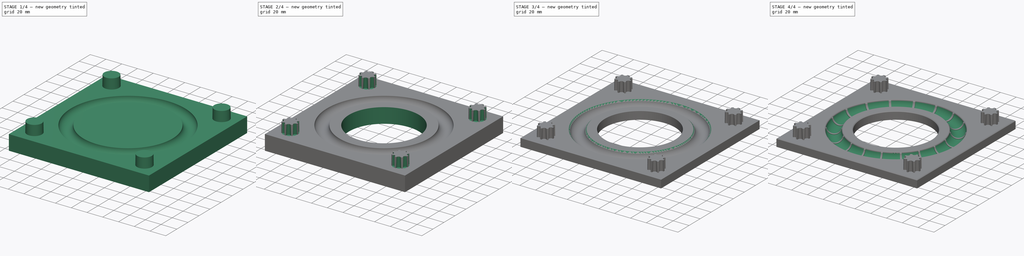
[diagram: build sequence overview — one tinted view per stage of 4, left to right]
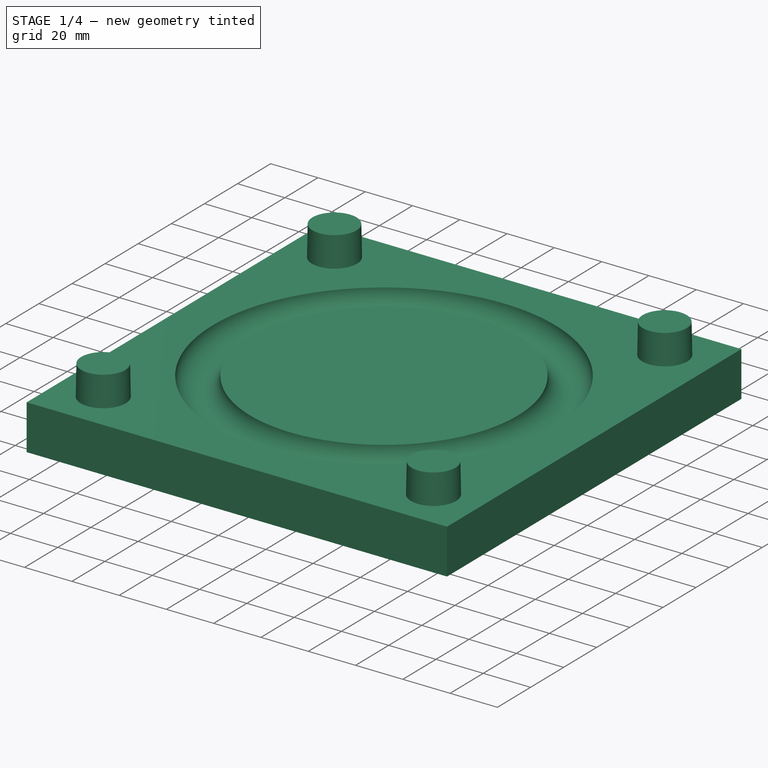
[diagram: stage 1 of 4 — iso view after this stage's code; geometry added in this stage tinted green]
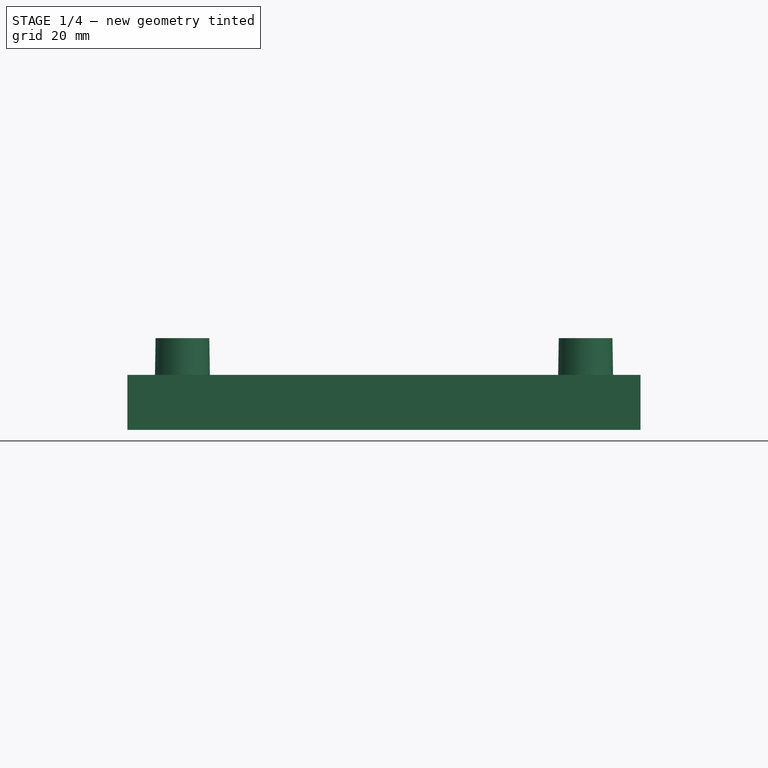
[diagram: stage 1 of 4 — front view after this stage's code; geometry added in this stage tinted green]
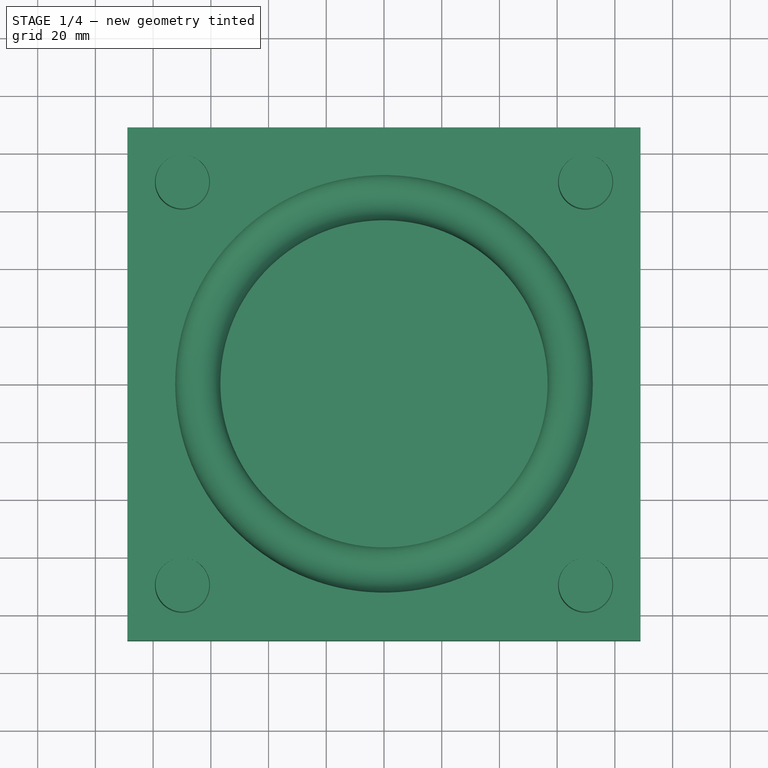
[diagram: stage 1 of 4 — top view after this stage's code; geometry added in this stage tinted green]
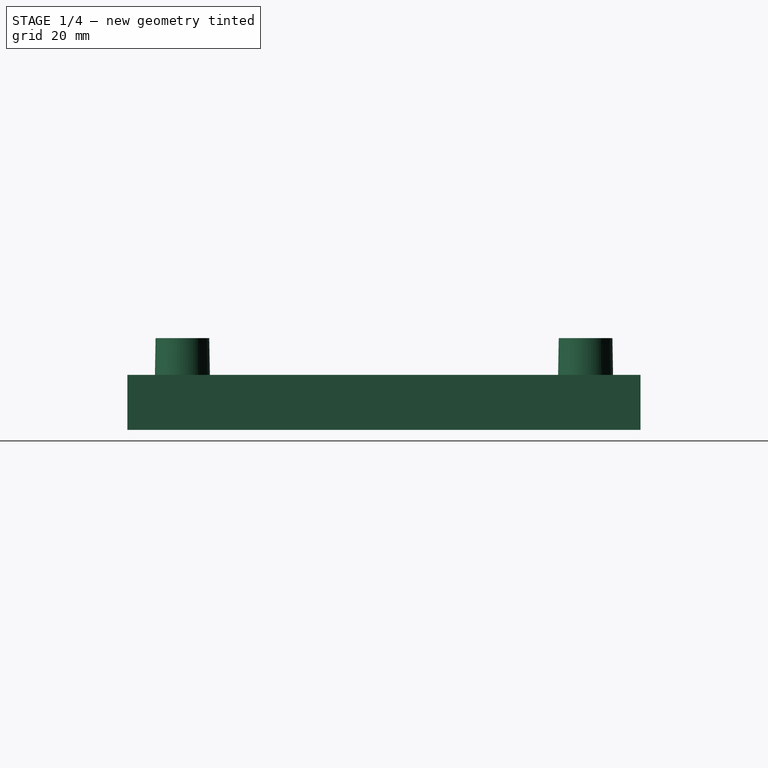
[diagram: stage 1 of 4 — right view after this stage's code; geometry added in this stage tinted green]
FCSTD DOCUMENT  (FreeCAD 0.21R33771 (Git))
Label: bottom_plate
License: All rights reserved
LicenseURL: http://en.wikipedia.org/wiki/All_rights_reserved
objects: Sketcher::SketchObject×8, PartDesign::Groove×3, PartDesign::Pocket×3, PartDesign::Pad×2, PartDesign::PolarPattern×2, PartDesign::Chamfer×1, PartDesign::Body×1
note: 29 computed .brp shape members not serialized (recipe doc carries the construction recipe); baked Part::Feature solids carry a one-line shape summary decoded from their .brp

FEATURE [Sketcher::SketchObject] Sketch
  FullyConstrained = true
  MapMode = 5
  Support = -> [XY_Plane]
  sketch-geometry (4):
    g0: LineSegment StartX=-88.9 StartY=-88.9 StartZ=0 EndX=88.9 EndY=-88.9 EndZ=0
    g1: LineSegment StartX=88.9 StartY=-88.9 StartZ=0 EndX=88.9 EndY=88.9 EndZ=0
    g2: LineSegment StartX=88.9 StartY=88.9 StartZ=0 EndX=-88.9 EndY=88.9 EndZ=0
    g3: LineSegment StartX=-88.9 StartY=88.9 StartZ=0 EndX=-88.9 EndY=-88.9 EndZ=0
  constraints (11):
    c: Coincident(g0,g1)
    c: Coincident(g1,g2)
    c: Coincident(g2,g3)
    c: Coincident(g3,g0)
    c: Horizontal(g0)
    c: Horizontal(g2)
    c: Vertical(g1)
    c: Vertical(g3)
    c: Symmetric(g0,g1,g-1)
    c: Equal(g0,g1)
    c: DistanceX(g2,g2) = 177.8
FEATURE [PartDesign::Pad] Pad
  Direction = (0,0,1)
  Length = 19.05
  Length2 = 10
  Profile = -> Sketch
  ReferenceAxis = -> Sketch [N_Axis]
  Type = 0
FEATURE [Sketcher::SketchObject] Sketch001
  ExternalGeometry = -> [Pad]
  FullyConstrained = true
  MapMode = 5
  Placement = pos=(0,0,0) rot=(1,0,0;1.5708rad)
  Support = -> [XZ_Plane]
  sketch-geometry (4):
    g0: Circle CenterX=64.516 CenterY=19.05 CenterZ=0 NormalX=0 NormalY=0 NormalZ=1 AngleXU=0 Radius=7.62
    g1: GeomPoint X=72.136 Y=19.05 Z=0
    g2: Circle CenterX=64.516 CenterY=19.05 CenterZ=0 NormalX=0 NormalY=0 NormalZ=1 AngleXU=0 Radius=7.81844
    g3: GeomPoint X=72.3344 Y=19.05 Z=0
  constraints (9):
    c: PointOnObject(g0,g-3)
    c: Diameter(g0) = 15.24
    c: PointOnObject(g1,g0)
    c: PointOnObject(g1,g-3)
    c: DistanceX(g-1,g1) = 72.136
    c: Coincident(g2,g0)
    c: PointOnObject(g3,g2)
    c: PointOnObject(g3,g-3)
    c: DistanceX(g1,g3) = 0.198437
FEATURE [PartDesign::Groove] Groove
  Angle = 360
  Axis = (0,2e-16,1)
  Base = (0,0,0)
  BaseFeature = -> Pad
  Profile = -> Sketch001
  ReferenceAxis = -> Sketch001 [V_Axis]
FEATURE [Sketcher::SketchObject] Sketch002
  FullyConstrained = true
  MapMode = 5
  Placement = pos=(0,0,19.05) rot=(0,0,1;0rad)
  Support = -> [Groove]
  sketch-geometry (8):
    g0: Circle CenterX=-69.85 CenterY=69.85 CenterZ=0 NormalX=0 NormalY=0 NormalZ=1 AngleXU=0 Radius=9.525
    g1: Circle CenterX=69.85 CenterY=69.85 CenterZ=0 NormalX=0 NormalY=0 NormalZ=1 AngleXU=0 Radius=9.525
    g2: Circle CenterX=-69.85 CenterY=-69.85 CenterZ=0 NormalX=0 NormalY=0 NormalZ=1 AngleXU=0 Radius=9.525
    g3: Circle CenterX=69.85 CenterY=-69.85 CenterZ=0 NormalX=0 NormalY=0 NormalZ=1 AngleXU=0 Radius=9.525
    g4: LineSegment StartX=-69.85 StartY=-69.85 StartZ=0 EndX=69.85 EndY=-69.85 EndZ=0
    g5: LineSegment StartX=69.85 StartY=-69.85 StartZ=0 EndX=69.85 EndY=69.85 EndZ=0
    g6: LineSegment StartX=69.85 StartY=69.85 StartZ=0 EndX=-69.85 EndY=69.85 EndZ=0
    g7: LineSegment StartX=-69.85 StartY=69.85 StartZ=0 EndX=-69.85 EndY=-69.85 EndZ=0
  constraints (19):
    c: Coincident(g4,g5)
    c: Coincident(g5,g6)
    c: Coincident(g6,g7)
    c: Coincident(g7,g4)
    c: Horizontal(g4)
    c: Horizontal(g6)
    c: Vertical(g5)
    c: Vertical(g7)
    c: Coincident(g4,g2)
    c: Coincident(g5,g1)
    c: Coincident(g0,g6)
    c: Coincident(g3,g4)
    c: Equal(g4,g5)
    c: Symmetric(g3,g0,g-1)
    c: Diameter(g3) = 19.05
    c: Equal(g3,g1)
    c: Equal(g1,g0)
    c: Equal(g0,g2)
    c: DistanceX(g6,g6) = 139.7
FEATURE [PartDesign::Pad] Pad001
  BaseFeature = -> Groove
  Direction = (0,0,1)
  Length = 12.7
  Length2 = 10
  Profile = -> Sketch002
  ReferenceAxis = -> Sketch002 [N_Axis]
  TaperAngle = -1
  Type = 0
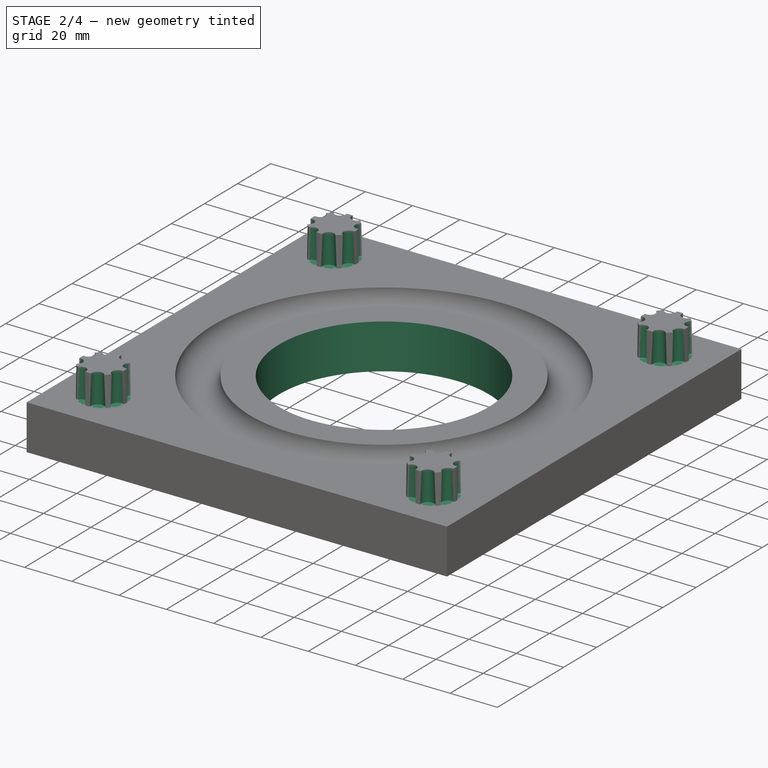
[diagram: stage 2 of 4 — iso view after this stage's code; geometry added in this stage tinted green]
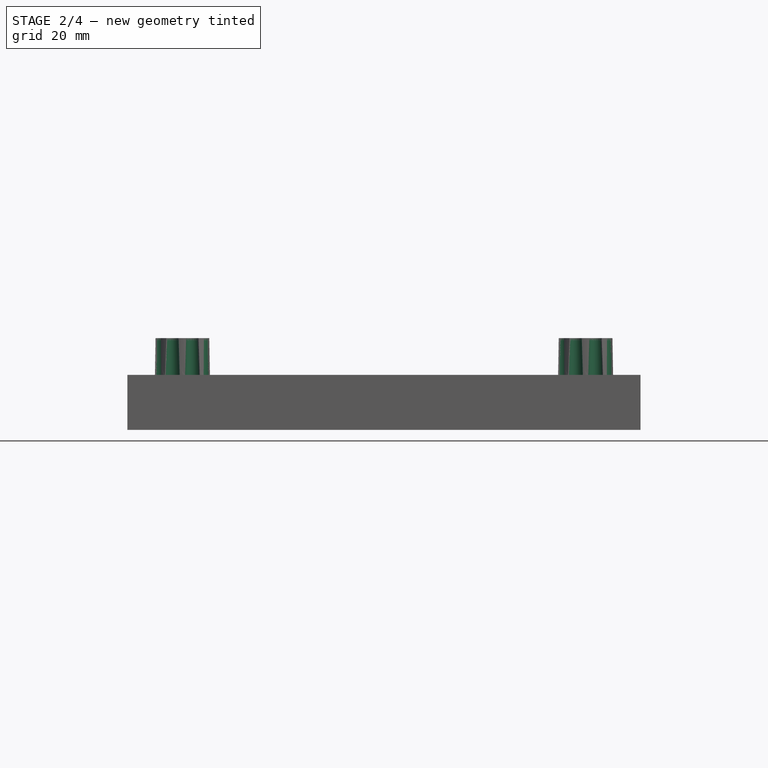
[diagram: stage 2 of 4 — front view after this stage's code; geometry added in this stage tinted green]
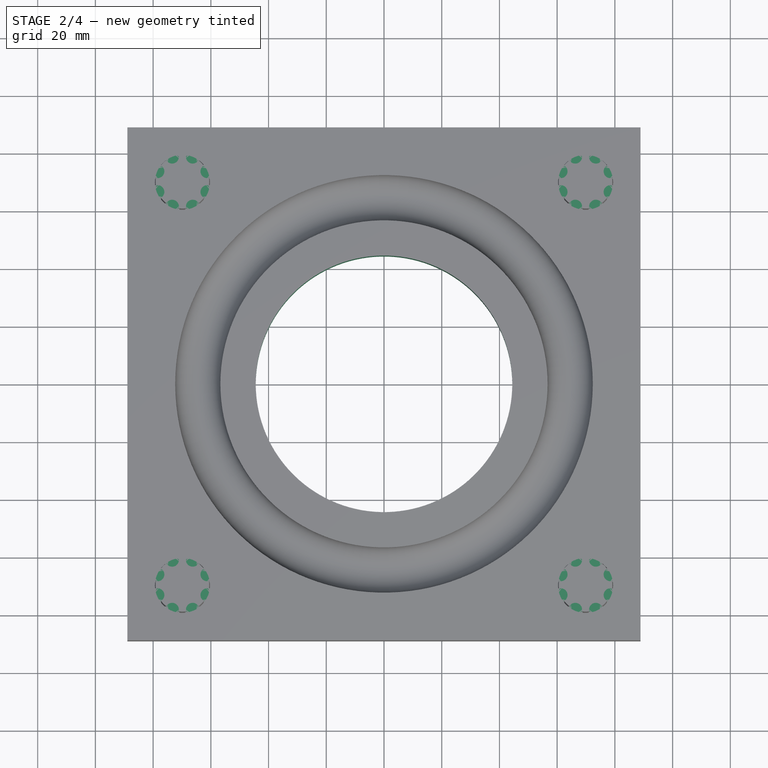
[diagram: stage 2 of 4 — top view after this stage's code; geometry added in this stage tinted green]
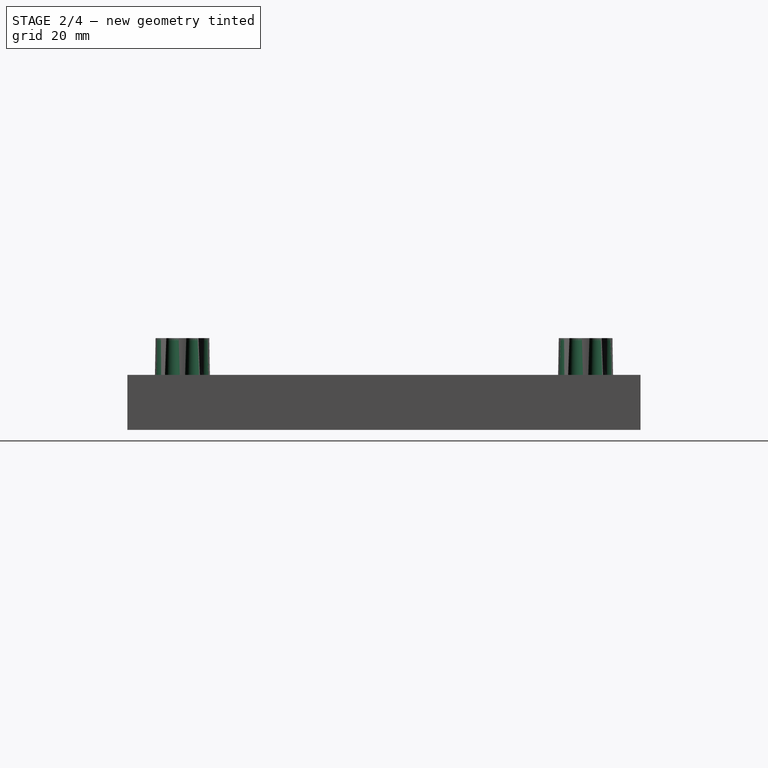
[diagram: stage 2 of 4 — right view after this stage's code; geometry added in this stage tinted green]
FEATURE [Sketcher::SketchObject] Sketch003
  ExternalGeometry = -> [Pad001]
  FullyConstrained = true
  MapMode = 5
  Placement = pos=(0,0,19.05) rot=(0,0,1;0rad)
  Support = -> [Pad001]
  sketch-geometry (17):
    g0: Circle CenterX=-66.2898 CenterY=78.4451 CenterZ=0 NormalX=0 NormalY=0 NormalZ=1 AngleXU=0 Radius=2.77813
    g1: Circle CenterX=-61.2549 CenterY=73.4102 CenterZ=0 NormalX=0 NormalY=0 NormalZ=1 AngleXU=0 Radius=2.77813
    g2: Circle CenterX=-61.2549 CenterY=66.2898 CenterZ=0 NormalX=0 NormalY=0 NormalZ=1 AngleXU=0 Radius=2.77813
    g3: Circle CenterX=-66.2898 CenterY=61.2549 CenterZ=0 NormalX=0 NormalY=0 NormalZ=1 AngleXU=0 Radius=2.77813
    g4: Circle CenterX=-73.4102 CenterY=61.2549 CenterZ=0 NormalX=0 NormalY=0 NormalZ=1 AngleXU=0 Radius=2.77813
    g5: Circle CenterX=-78.4451 CenterY=66.2898 CenterZ=0 NormalX=0 NormalY=0 NormalZ=1 AngleXU=0 Radius=2.77813
    g6: Circle CenterX=-78.4451 CenterY=73.4102 CenterZ=0 NormalX=0 NormalY=0 NormalZ=1 AngleXU=0 Radius=2.77813
    g7: Circle CenterX=-73.4102 CenterY=78.4451 CenterZ=0 NormalX=0 NormalY=0 NormalZ=1 AngleXU=0 Radius=2.77813
    g8: LineSegment StartX=-66.2898 StartY=78.4451 StartZ=0 EndX=-73.4102 EndY=78.4451 EndZ=0
    g9: LineSegment StartX=-73.4102 StartY=78.4451 StartZ=0 EndX=-78.4451 EndY=73.4102 EndZ=0
    g10: LineSegment StartX=-78.4451 StartY=73.4102 StartZ=0 EndX=-78.4451 EndY=66.2898 EndZ=0
    g11: LineSegment StartX=-78.4451 StartY=66.2898 StartZ=0 EndX=-73.4102 EndY=61.2549 EndZ=0
    g12: LineSegment StartX=-73.4102 StartY=61.2549 StartZ=0 EndX=-66.2898 EndY=61.2549 EndZ=0
    g13: LineSegment StartX=-66.2898 StartY=61.2549 StartZ=0 EndX=-61.2549 EndY=66.2898 EndZ=0
    g14: LineSegment StartX=-61.2549 StartY=66.2898 StartZ=0 EndX=-61.2549 EndY=73.4102 EndZ=0
    g15: LineSegment StartX=-61.2549 StartY=73.4102 StartZ=0 EndX=-66.2898 EndY=78.4451 EndZ=0
    g16: Circle CenterX=-69.85 CenterY=69.85 CenterZ=0 NormalX=0 NormalY=0 NormalZ=1 AngleXU=0 Radius=9.30332
  constraints (36):
    c: PointOnObject(g0,g-3)
    c: PointOnObject(g1,g-3)
    c: PointOnObject(g2,g-3)
    c: PointOnObject(g3,g-3)
    c: PointOnObject(g4,g-3)
    c: PointOnObject(g5,g-3)
    c: PointOnObject(g6,g-3)
    c: Coincident(g8,g9)
    c: Coincident(g9,g10)
    c: Coincident(g10,g11)
    c: Coincident(g11,g12)
    c: Coincident(g12,g13)
    c: Coincident(g13,g14)
    c: Coincident(g14,g15)
    c: Coincident(g15,g8)
    c: Equal(g8, g9-g15) x7
    c: PointOnObject(g8,g16)
    c: PointOnObject(g9,g16)
    c: Coincident(g16,g-3)
    c: Coincident(g15,g0)
    c: Coincident(g14,g1)
    c: Coincident(g13,g2)
    c: Coincident(g3,g12)
    c: Coincident(g4,g11)
    c: Coincident(g10,g5)
    c: Coincident(g9,g6)
    c: Coincident(g7,g8)
    c: Horizontal(g12)
    c: Equal(g7,g0)
    c: Equal(g0,g1)
    c: Equal(g1,g2)
    c: Equal(g2,g3)
    c: Equal(g3,g4)
    c: Equal(g4,g5)
    c: Equal(g5,g6)
    c: Diameter(g0) = 5.55625
FEATURE [PartDesign::Pocket] Pocket
  BaseFeature = -> Pad001
  Direction = (0,0,-1)
  Length = 25.4
  Length2 = 5
  Profile = -> Sketch003
  ReferenceAxis = -> Sketch003 [N_Axis]
  Reversed = true
  TaperAngle = -2
  Type = 0
FEATURE [PartDesign::PolarPattern] PolarPattern
  Angle = 360
  Axis = -> Sketch003 [N_Axis]
  BaseFeature = -> Pocket
  Occurrences = 4
  Originals = -> [Pocket]
FEATURE [Sketcher::SketchObject] Sketch005
  FullyConstrained = true
  MapMode = 5
  Placement = pos=(0,0,19.05) rot=(0,0,1;0rad)
  sketch-geometry (1):
    g0: Circle CenterX=0 CenterY=0 CenterZ=0 NormalX=0 NormalY=0 NormalZ=1 AngleXU=0 Radius=44.45
  constraints (2):
    c: Coincident(g0,g-1)
    c: Diameter(g0) = 88.9
FEATURE [PartDesign::Pocket] Pocket002
  BaseFeature = -> PolarPattern
  Direction = (0,0,-1)
  Length = 5
  Length2 = 5
  Profile = -> Sketch005
  ReferenceAxis = -> Sketch005 [N_Axis]
  Type = 1
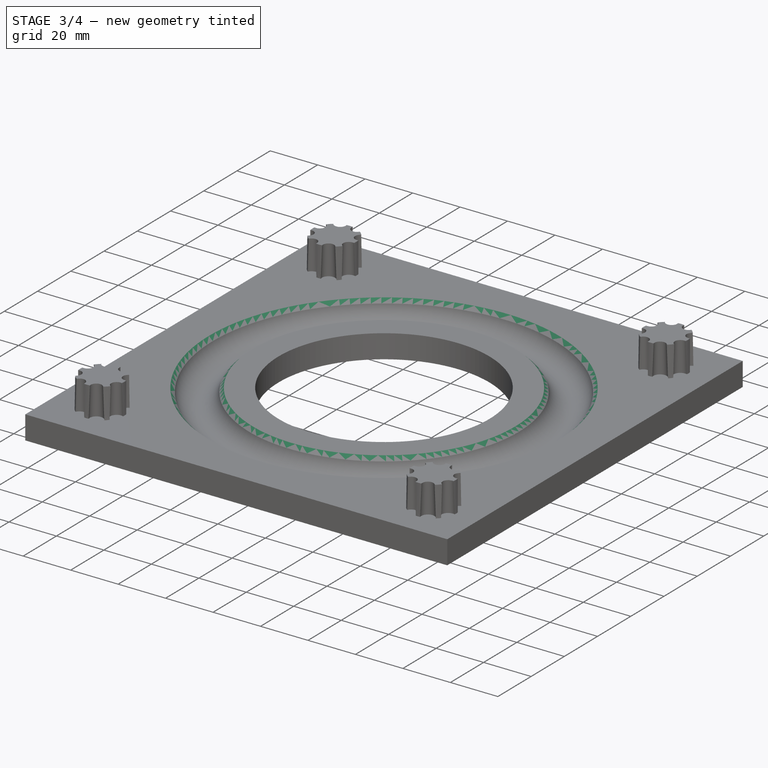
[diagram: stage 3 of 4 — iso view after this stage's code; geometry added in this stage tinted green]
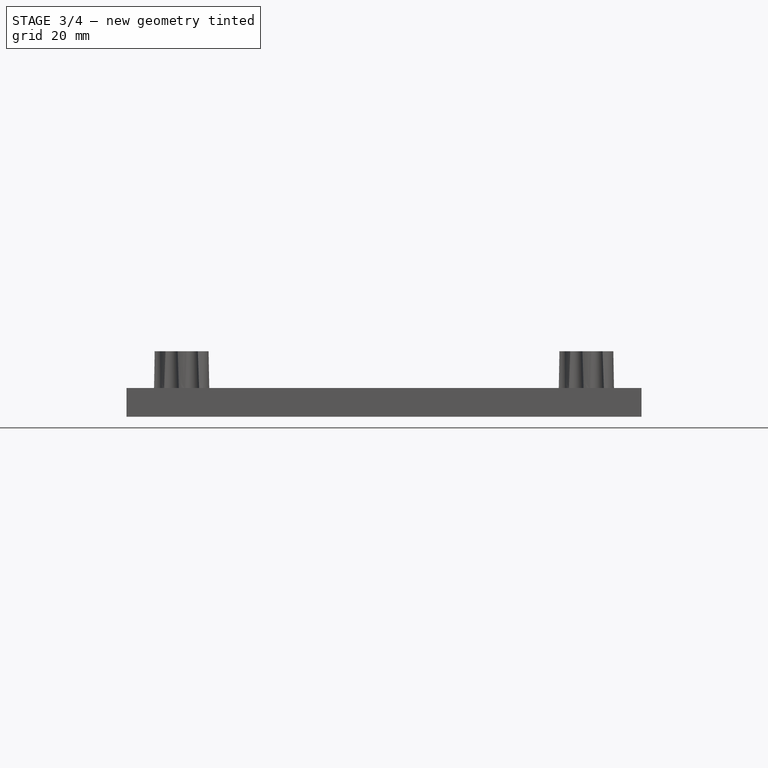
[diagram: stage 3 of 4 — front view after this stage's code; geometry added in this stage tinted green]
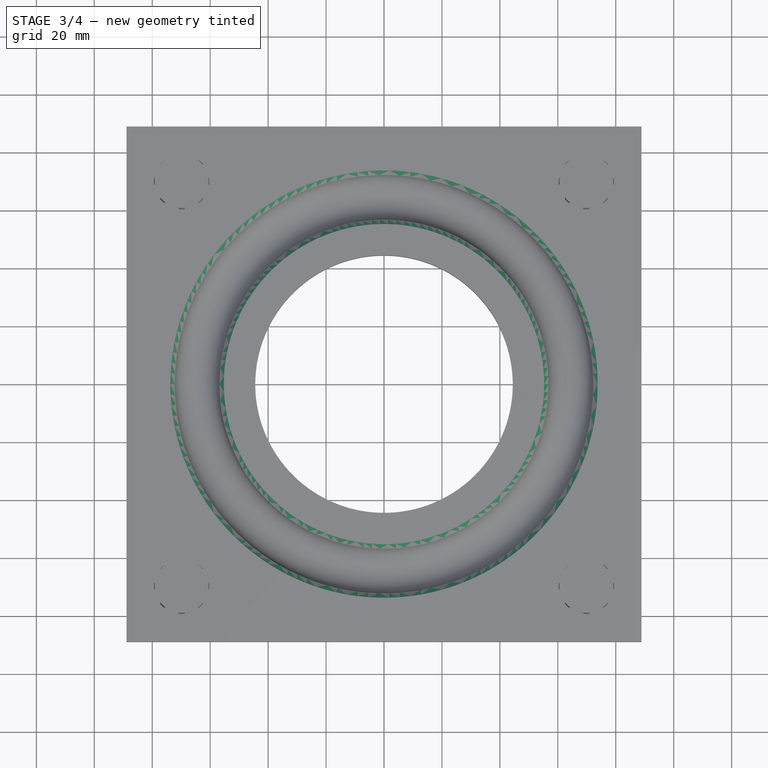
[diagram: stage 3 of 4 — top view after this stage's code; geometry added in this stage tinted green]
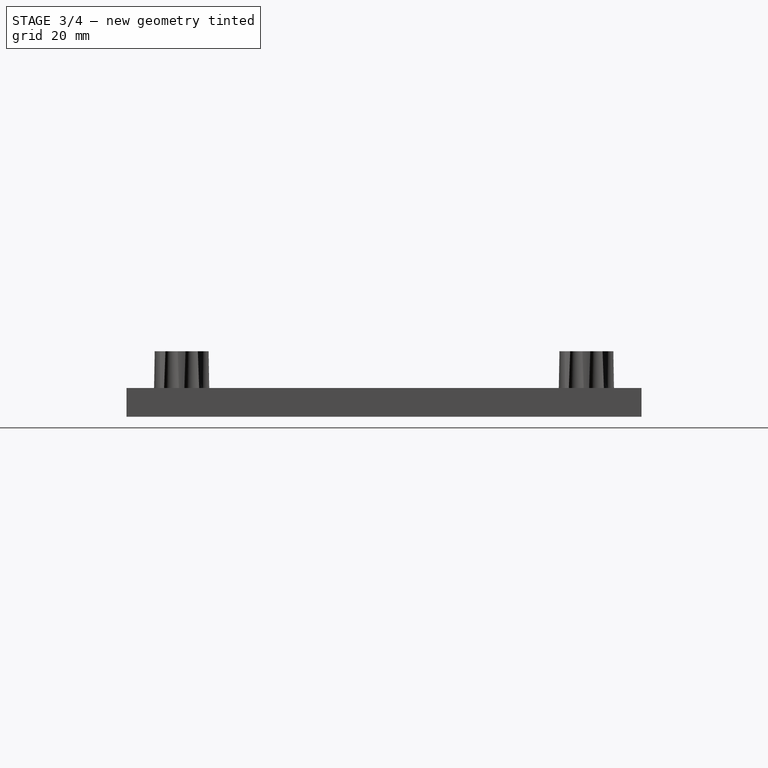
[diagram: stage 3 of 4 — right view after this stage's code; geometry added in this stage tinted green]
FEATURE [Sketcher::SketchObject] Sketch006
  ExternalGeometry = -> [Pocket002]
  FullyConstrained = true
  MapMode = 5
  Placement = pos=(0,-88.9,0) rot=(1,0,0;1.5708rad)
  Support = -> [Pocket002]
  sketch-geometry (8):
    g0: LineSegment StartX=61.341 StartY=11.9053 StartZ=0 EndX=67.691 EndY=11.9053 EndZ=0
    g1: LineSegment StartX=67.691 StartY=11.9053 StartZ=0 EndX=67.691 EndY=12.3021 EndZ=0
    g2: LineSegment StartX=67.691 StartY=12.3021 StartZ=0 EndX=61.341 EndY=12.3021 EndZ=0
    g3: LineSegment StartX=61.341 StartY=12.3021 StartZ=0 EndX=61.341 EndY=11.9053 EndZ=0
    g4: LineSegment StartX=-88.9 StartY=0 StartZ=0 EndX=88.9 EndY=0 EndZ=0
    g5: LineSegment StartX=88.9 StartY=0 StartZ=0 EndX=88.9 EndY=9.12713 EndZ=0
    g6: LineSegment StartX=88.9 StartY=9.12713 StartZ=0 EndX=-88.9 EndY=9.12713 EndZ=0
    g7: LineSegment StartX=-88.9 StartY=9.12713 StartZ=0 EndX=-88.9 EndY=0 EndZ=0
  constraints (23):
    c: Coincident(g0,g1)
    c: Coincident(g1,g2)
    c: Coincident(g2,g3)
    c: Coincident(g3,g0)
    c: Horizontal(g0)
    c: Horizontal(g2)
    c: Vertical(g1)
    c: Vertical(g3)
    c: PointOnObject(g0,g-3)
    c: PointOnObject(g0,g-3)
    c: DistanceX(g0,g0) = 6.35
    c: DistanceY(g1,g1) = 0.396875
    c: Coincident(g4,g5)
    c: Coincident(g5,g6)
    c: Coincident(g6,g7)
    c: Coincident(g7,g4)
    c: Horizontal(g4)
    c: Horizontal(g6)
    c: Vertical(g5)
    c: Vertical(g7)
    c: Coincident(g4,g-4)
    c: PointOnObject(g5,g-5)
    c: DistanceY(g5,g1) = 3.175
FEATURE [PartDesign::Pocket] Pocket003
  BaseFeature = -> Pocket002
  Direction = (0,1,-2e-16)
  Length = 5
  Length2 = 5
  Profile = -> Sketch006
  ReferenceAxis = -> Sketch006 [N_Axis]
  Type = 1
FEATURE [Sketcher::SketchObject] Sketch007
  ExternalGeometry = -> [Pocket003]
  FullyConstrained = true
  MapMode = 5
  Placement = pos=(0,0,0) rot=(1,0,0;1.5708rad)
  Support = -> [XZ_Plane]
  sketch-geometry (6):
    g0: LineSegment StartX=72.1716 StartY=17.4625 StartZ=0 EndX=72.1716 EndY=19.05 EndZ=0
    g1: LineSegment StartX=72.1716 StartY=19.05 StartZ=0 EndX=73.7591 EndY=19.05 EndZ=0
    g2: LineSegment StartX=73.7591 StartY=19.05 StartZ=0 EndX=72.1716 EndY=17.4625 EndZ=0
    g3: LineSegment StartX=56.8604 StartY=17.4625 StartZ=0 EndX=56.8604 EndY=19.05 EndZ=0
    g4: LineSegment StartX=56.8604 StartY=19.05 StartZ=0 EndX=55.2729 EndY=19.05 EndZ=0
    g5: LineSegment StartX=55.2729 StartY=19.05 StartZ=0 EndX=56.8604 EndY=17.4625 EndZ=0
  constraints (18):
    c: PointOnObject(g0,g-3)
    c: PointOnObject(g0,g-4)
    c: Vertical(g0)
    c: Coincident(g0,g1)
    c: PointOnObject(g1,g-4)
    c: Coincident(g1,g2)
    c: Coincident(g2,g0)
    c: PointOnObject(g3,g-3)
    c: PointOnObject(g3,g-4)
    c: Coincident(g3,g4)
    c: PointOnObject(g4,g-4)
    c: Coincident(g4,g5)
    c: Coincident(g5,g3)
    c: Vertical(g3)
    c: Equal(g4,g3)
    c: Equal(g3,g0)
    c: Equal(g0,g1)
    c: DistanceX(g4,g4) = 1.5875
FEATURE [PartDesign::Groove] Groove001
  Angle = 360
  Axis = (0,2e-16,1)
  Base = (0,0,0)
  BaseFeature = -> Pocket003
  Profile = -> Sketch007
  ReferenceAxis = -> Sketch007 [V_Axis]
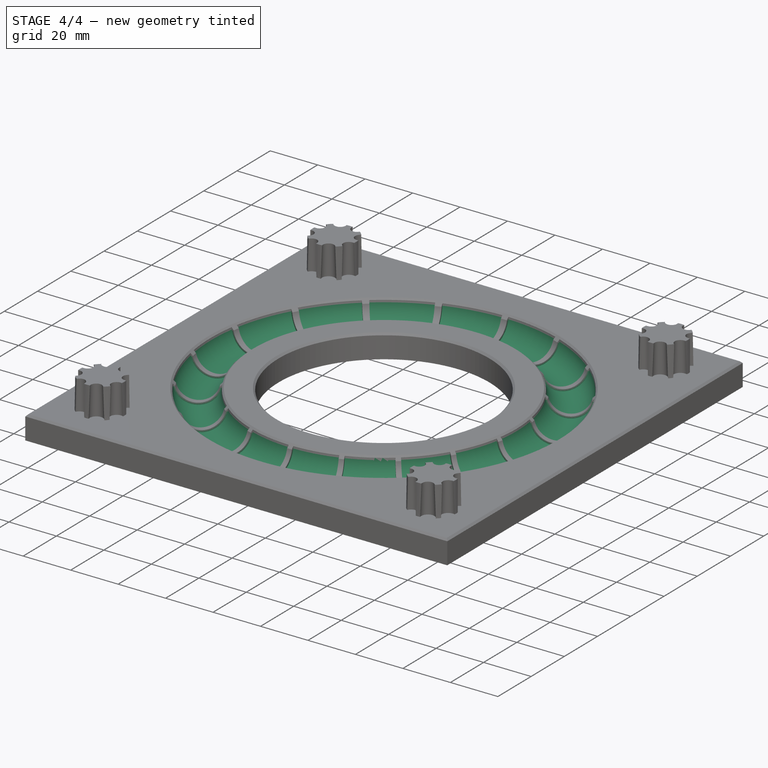
[diagram: stage 4 of 4 — iso view after this stage's code; geometry added in this stage tinted green]
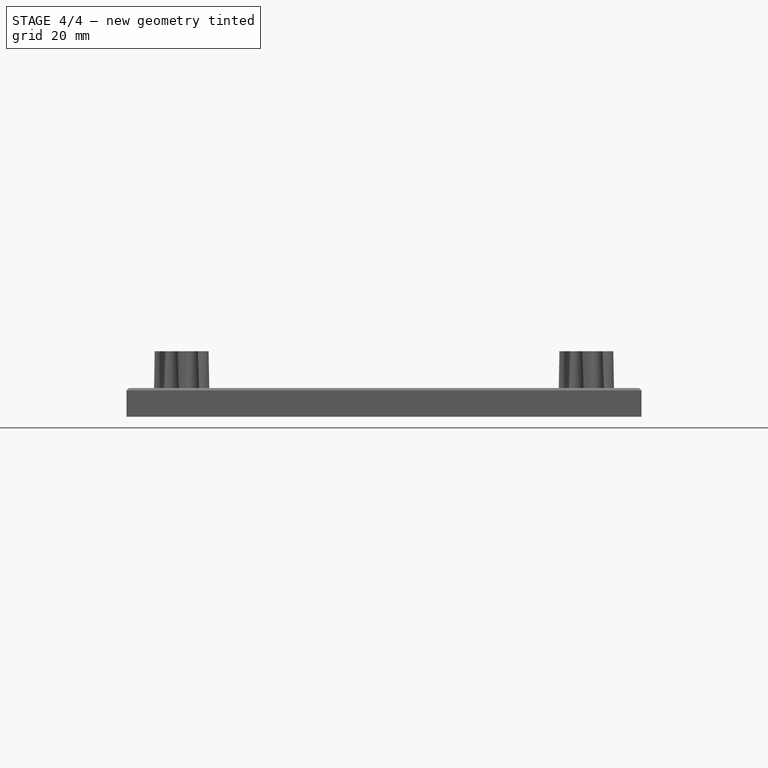
[diagram: stage 4 of 4 — front view after this stage's code; geometry added in this stage tinted green]
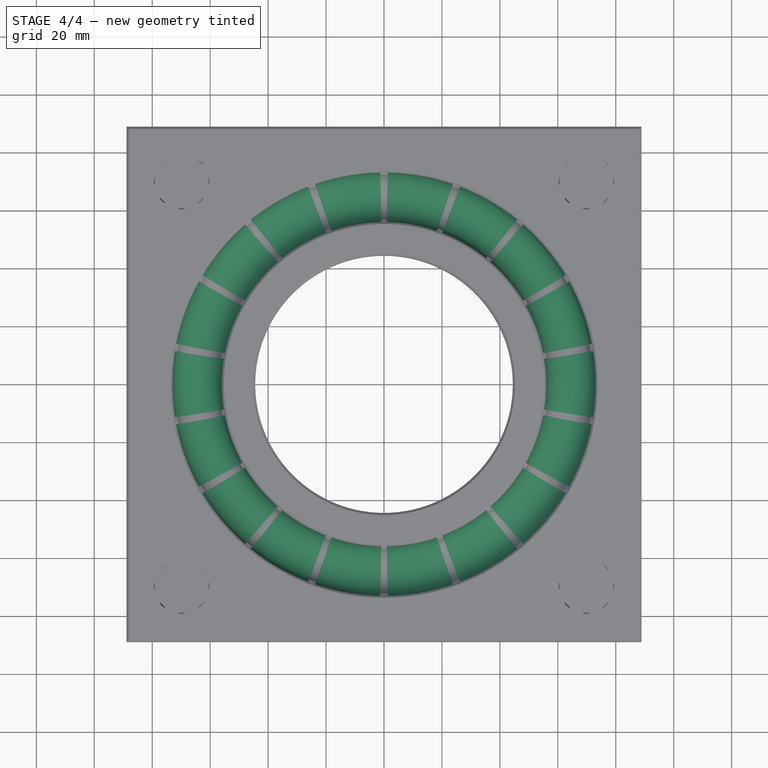
[diagram: stage 4 of 4 — top view after this stage's code; geometry added in this stage tinted green]
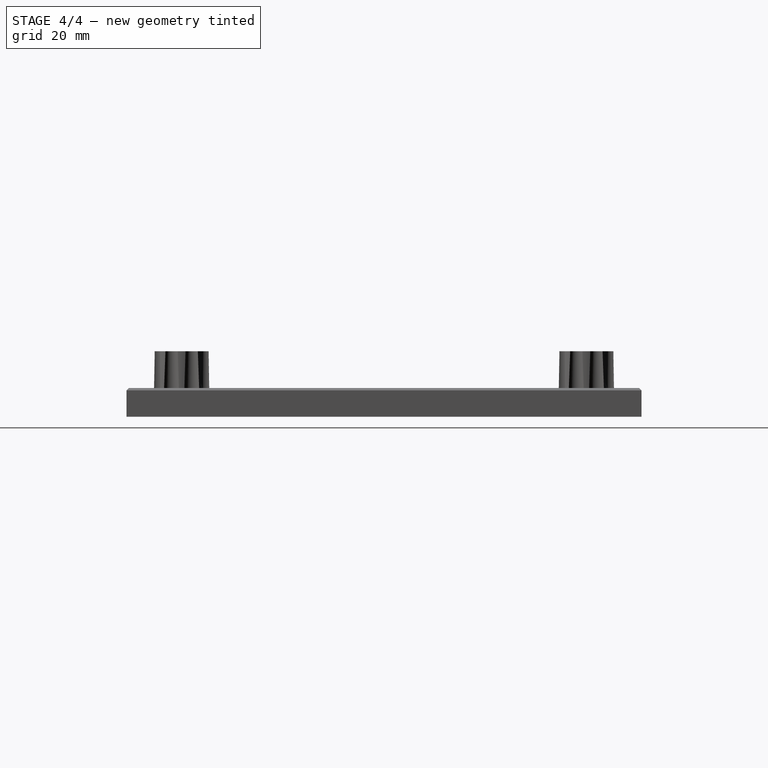
[diagram: stage 4 of 4 — right view after this stage's code; geometry added in this stage tinted green]
FEATURE [Sketcher::SketchObject] Sketch008
  ExternalGeometry = -> [Groove001]
  FullyConstrained = true
  MapMode = 5
  Placement = pos=(0,0,0) rot=(1,0,0;1.5708rad)
  Support = -> [XZ_Plane]
  sketch-geometry (2):
    g0: Circle CenterX=64.516 CenterY=19.05 CenterZ=0 NormalX=0 NormalY=0 NormalZ=1 AngleXU=0 Radius=8.61219
    g1: LineSegment StartX=72.3344 StartY=19.05 StartZ=0 EndX=73.1282 EndY=19.05 EndZ=0
  constraints (6):
    c: Coincident(g0,g-3)
    c: PointOnObject(g1,g-3)
    c: PointOnObject(g1,g0)
    c: Perpendicular(g0,g1)
    c: Distance(g1) = 0.79375
    c: Horizontal(g1)
FEATURE [PartDesign::Groove] Groove002
  Angle = 18
  Axis = (0,2e-16,1)
  Base = (0,0,0)
  BaseFeature = -> Groove001
  Midplane = true
  Profile = -> Sketch008
  ReferenceAxis = -> Sketch008 [V_Axis]
FEATURE [PartDesign::PolarPattern] PolarPattern001
  Angle = 360
  Axis = -> Z_Axis
  BaseFeature = -> Groove002
  Occurrences = 18
  Originals = -> [Groove002]
FEATURE [PartDesign::Chamfer] Chamfer
  Angle = 45
  Base = -> PolarPattern001 [Edge100,Edge11,Edge12,Edge10,Edge3]
  BaseFeature = -> PolarPattern001
  ChamferType = 0
  FlipDirection = false
  Size = 0.79375
  Size2 = 1
  SupportTransform = false
  UseAllEdges = false
FEATURE [PartDesign::Body] Body
  Group = -> [Sketch,Pad,Sketch001,Groove,Sketch002,Pad001,Sketch003,Pocket,PolarPattern,Sketch005,Pocket002,Sketch006,Pocket003,Sketch007,Groove001,Sketch008,Groove002,PolarPattern001,Chamfer]
  Origin = -> Origin
  Tip = -> Chamfer
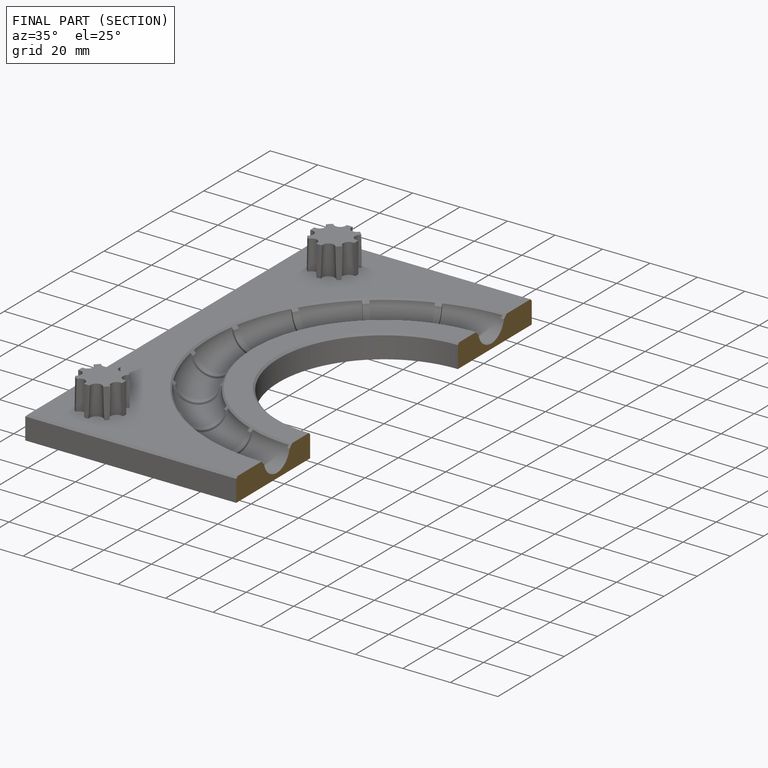
[diagram: finished part — half-section view (interior)]
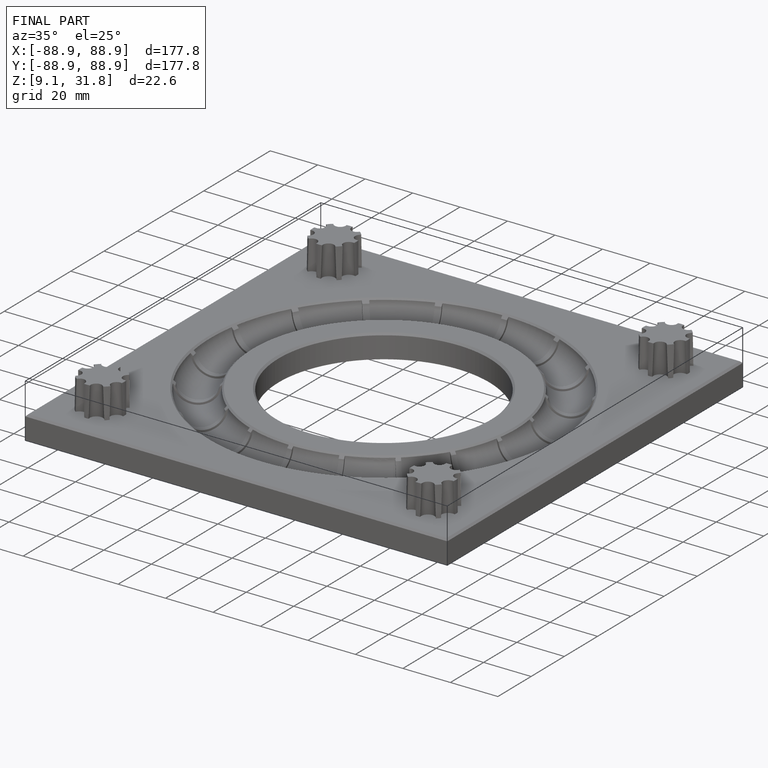
[diagram: finished part — iso view with bounding-box wireframe]
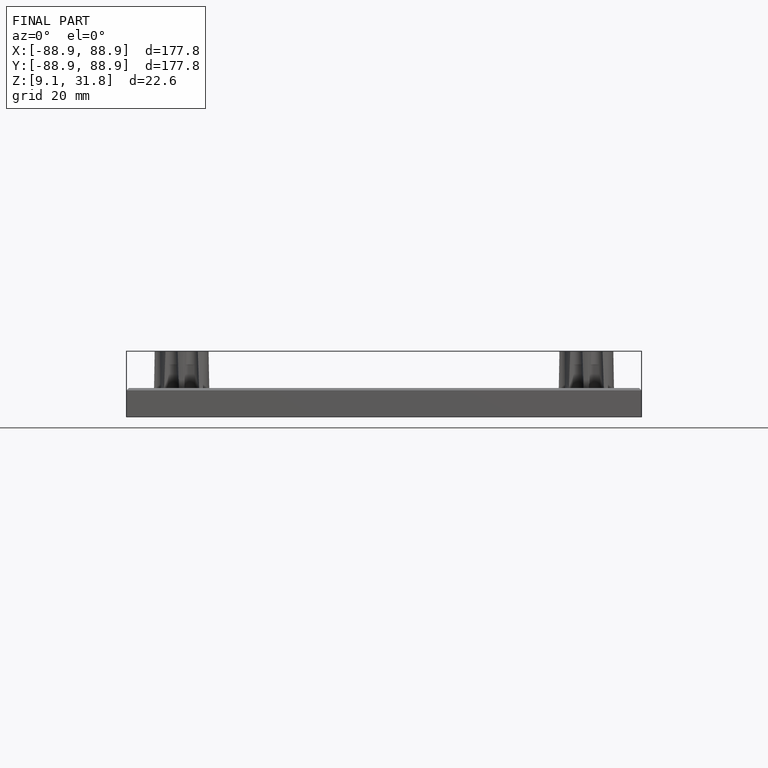
[diagram: finished part — front view with bounding-box wireframe]
